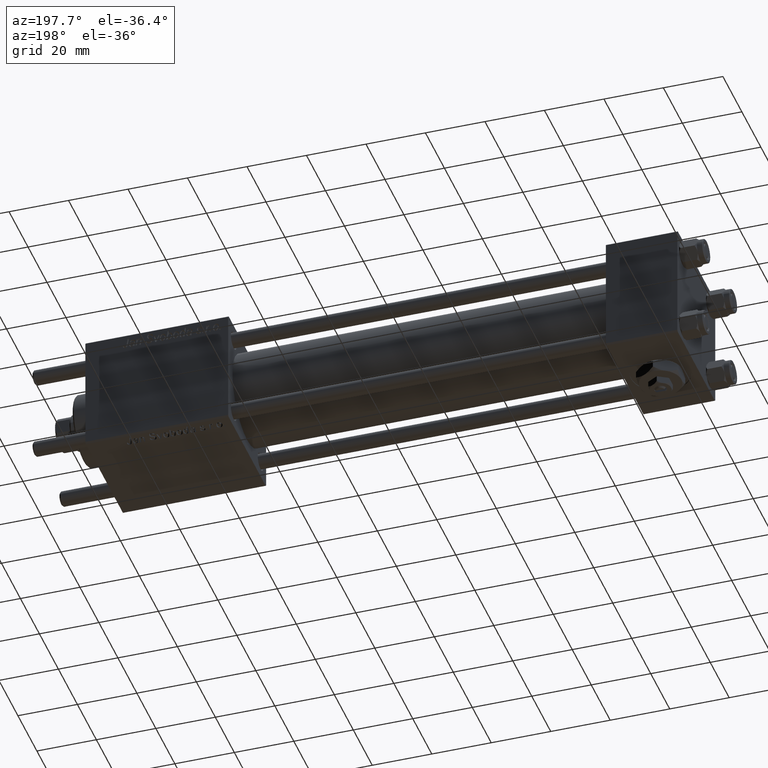
[diagram: clean part render]
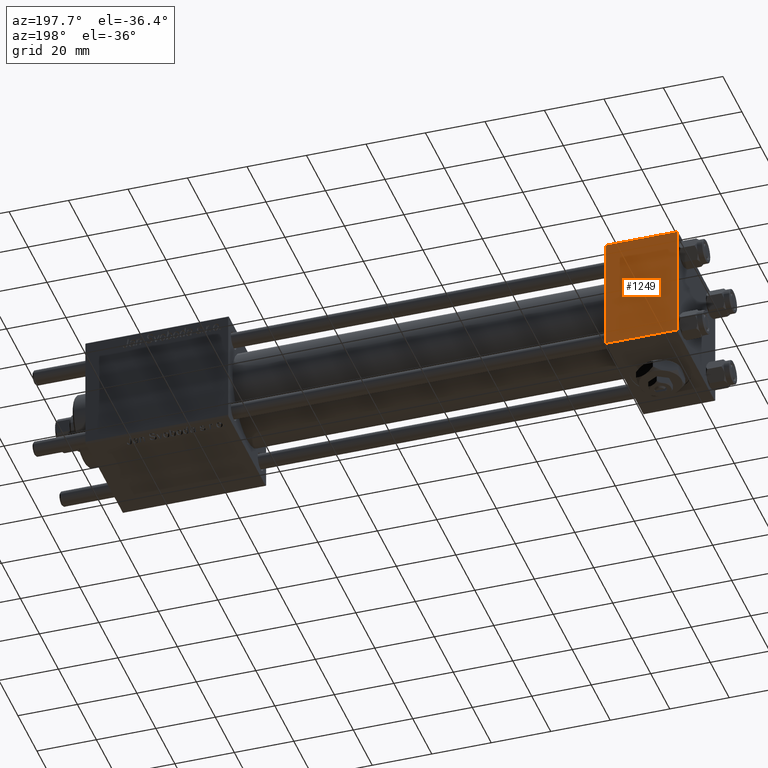
[diagram: same view with one face highlighted and labeled with its STEP entity id]
A machine part, auxiliary view. The second image highlights one B-rep face of the part: STEP entity #1249.
In plain terms, the highlighted planar face has unit normal (0, 1, 0).
Its self-contained STEP definition (entity closure, byte-faithful):
#95 = VECTOR ( 'NONE', #45489, 1000.000000000000000 ) ;
#1069 = EDGE_LOOP ( 'NONE', ( #2637, #50466, #3831, #30606 ) ) ;
#1249 = ADVANCED_FACE ( 'NONE', ( #19052 ), #1619, .T. ) ;
#1619 = PLANE ( 'NONE',  #8909 ) ;
#2637 = ORIENTED_EDGE ( 'NONE', *, *, #48274, .T. ) ;
#3831 = ORIENTED_EDGE ( 'NONE', *, *, #24714, .F. ) ;
#8909 = AXIS2_PLACEMENT_3D ( 'NONE', #41224, #50398, #14627 ) ;
#10304 = EDGE_CURVE ( 'NONE', #47561, #44867, #44631, .T. ) ;
#12981 = LINE ( 'NONE', #26271, #43491 ) ;
#14627 = DIRECTION ( 'NONE',  ( 0.000000000000000000, -0.000000000000000000, 1.000000000000000000 ) ) ;
#17131 = DIRECTION ( 'NONE',  ( -1.000000000000000000, 0.000000000000000000, 0.000000000000000000 ) ) ;
#19052 = FACE_OUTER_BOUND ( 'NONE', #1069, .T. ) ;
#22526 = VERTEX_POINT ( 'NONE', #57141 ) ;
#22784 = DIRECTION ( 'NONE',  ( 0.000000000000000000, 0.000000000000000000, -1.000000000000000000 ) ) ;
#24465 = VECTOR ( 'NONE', #22784, 1000.000000000000000 ) ;
#24714 = EDGE_CURVE ( 'NONE', #47561, #22526, #54060, .T. ) ;
#25702 = CARTESIAN_POINT ( 'NONE',  ( 24.00000000000000000, 20.00000000000000000, 19.49999999999999289 ) ) ;
#26271 = CARTESIAN_POINT ( 'NONE',  ( 24.00000000000000000, 20.00000000000000000, -19.50000000000002132 ) ) ;
#30606 = ORIENTED_EDGE ( 'NONE', *, *, #10304, .T. ) ;
#31339 = LINE ( 'NONE', #44961, #24465 ) ;
#33104 = CARTESIAN_POINT ( 'NONE',  ( 24.00000000000000000, 20.00000000000000000, -19.50000000000002132 ) ) ;
#35025 = VERTEX_POINT ( 'NONE', #33104 ) ;
#37670 = CARTESIAN_POINT ( 'NONE',  ( 24.00000000000000000, 20.00000000000000000, 19.49999999999999289 ) ) ;
#41224 = CARTESIAN_POINT ( 'NONE',  ( 24.00000000000000000, 20.00000000000000000, 20.00000000000000000 ) ) ;
#43491 = VECTOR ( 'NONE', #17131, 1000.000000000000000 ) ;
#44631 = LINE ( 'NONE', #25702, #54536 ) ;
#44867 = VERTEX_POINT ( 'NONE', #37670 ) ;
#44961 = CARTESIAN_POINT ( 'NONE',  ( 24.00000000000000000, 20.00000000000000000, 20.00000000000000000 ) ) ;
#45489 = DIRECTION ( 'NONE',  ( 0.000000000000000000, 0.000000000000000000, -1.000000000000000000 ) ) ;
#46080 = CARTESIAN_POINT ( 'NONE',  ( 0.000000000000000000, 20.00000000000000000, 20.00000000000000000 ) ) ;
#47561 = VERTEX_POINT ( 'NONE', #49390 ) ;
#48274 = EDGE_CURVE ( 'NONE', #44867, #35025, #31339, .T. ) ;
#48770 = DIRECTION ( 'NONE',  ( 1.000000000000000000, 0.000000000000000000, 0.000000000000000000 ) ) ;
#49390 = CARTESIAN_POINT ( 'NONE',  ( 0.000000000000000000, 20.00000000000000000, 19.49999999999999289 ) ) ;
#50398 = DIRECTION ( 'NONE',  ( -0.000000000000000000, 1.000000000000000000, 0.000000000000000000 ) ) ;
#50466 = ORIENTED_EDGE ( 'NONE', *, *, #53005, .T. ) ;
#53005 = EDGE_CURVE ( 'NONE', #35025, #22526, #12981, .T. ) ;
#54060 = LINE ( 'NONE', #46080, #95 ) ;
#54536 = VECTOR ( 'NONE', #48770, 1000.000000000000000 ) ;
#57141 = CARTESIAN_POINT ( 'NONE',  ( 0.000000000000000000, 20.00000000000000000, -19.50000000000002132 ) ) ;